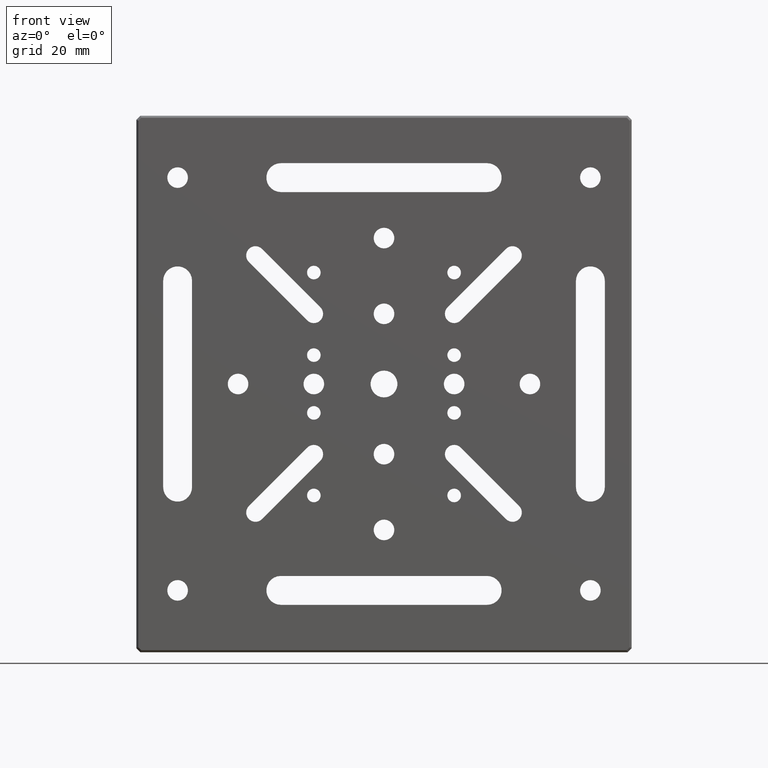
[diagram: clean part render]
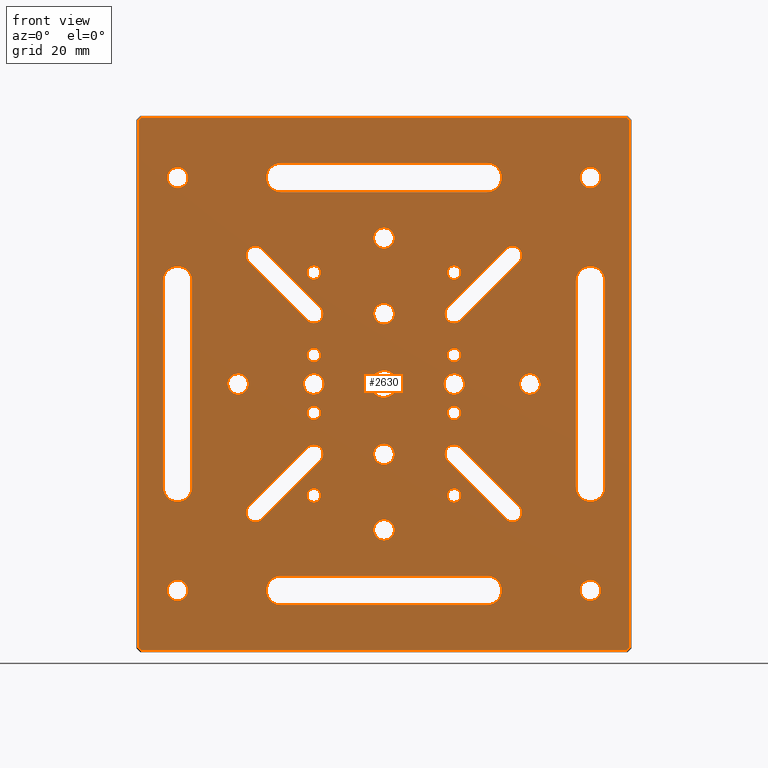
[diagram: same view with one face highlighted and labeled with its STEP entity id]
A machine part, front view. The second image highlights one B-rep face of the part: STEP entity #2630.
In plain terms, the highlighted planar face has unit normal (0, 1, 0).
Its self-contained STEP definition (entity closure, byte-faithful):
#2 = LINE ( 'NONE', #3746, #1610 ) ;
#10 = DIRECTION ( 'NONE',  ( 0.7071067811865470176, 0.000000000000000000, -0.7071067811865481278 ) ) ;
#14 = EDGE_CURVE ( 'NONE', #4095, #4095, #4105, .T. ) ;
#21 = EDGE_CURVE ( 'NONE', #1470, #1652, #2308, .T. ) ;
#27 = VERTEX_POINT ( 'NONE', #716 ) ;
#36 = VERTEX_POINT ( 'NONE', #2640 ) ;
#50 = AXIS2_PLACEMENT_3D ( 'NONE', #325, #1687, #2370 ) ;
#51 = ORIENTED_EDGE ( 'NONE', *, *, #2234, .T. ) ;
#55 = EDGE_CURVE ( 'NONE', #4284, #36, #303, .T. ) ;
#61 = CARTESIAN_POINT ( 'NONE',  ( -16.99999999999998934, -1.734723475976807094E-15, 28.64999999999999147 ) ) ;
#63 = AXIS2_PLACEMENT_3D ( 'NONE', #1187, #2539, #4215 ) ;
#89 = AXIS2_PLACEMENT_3D ( 'NONE', #1354, #2394, #3423 ) ;
#90 = LINE ( 'NONE', #4214, #794 ) ;
#99 = EDGE_LOOP ( 'NONE', ( #1305 ) ) ;
#102 = DIRECTION ( 'NONE',  ( -0.7071067811865481278, 0.000000000000000000, -0.7071067811865469066 ) ) ;
#106 = VERTEX_POINT ( 'NONE', #2481 ) ;
#110 = ORIENTED_EDGE ( 'NONE', *, *, #1559, .T. ) ;
#113 = LINE ( 'NONE', #3766, #2857 ) ;
#122 = EDGE_CURVE ( 'NONE', #2741, #2676, #3083, .T. ) ;
#126 = EDGE_CURVE ( 'NONE', #2676, #1183, #204, .T. ) ;
#130 = CARTESIAN_POINT ( 'NONE',  ( -18.59099025766972701, 0.000000000000000000, 15.40900974233026410 ) ) ;
#137 = VECTOR ( 'NONE', #1851, 1000.000000000000000 ) ;
#144 = CIRCLE ( 'NONE', #3772, 2.499999999999995115 ) ;
#149 = EDGE_LOOP ( 'NONE', ( #235 ) ) ;
#156 = CARTESIAN_POINT ( 'NONE',  ( 18.59099025766976254, 0.000000000000000000, 15.40900974233029075 ) ) ;
#158 = CARTESIAN_POINT ( 'NONE',  ( -46.50000000000001421, 0.000000000000000000, 24.99999999999999289 ) ) ;
#174 = DIRECTION ( 'NONE',  ( 0.000000000000000000, 1.000000000000000000, 0.000000000000000000 ) ) ;
#192 = VECTOR ( 'NONE', #2288, 1000.000000000000000 ) ;
#194 = DIRECTION ( 'NONE',  ( -0.000000000000000000, 1.000000000000000000, -0.000000000000000000 ) ) ;
#204 = CIRCLE ( 'NONE', #50, 2.250000000000000444 ) ;
#210 = EDGE_CURVE ( 'NONE', #3156, #3156, #757, .T. ) ;
#221 = CIRCLE ( 'NONE', #1353, 2.499999999999998668 ) ;
#225 = CARTESIAN_POINT ( 'NONE',  ( 25.00000000000000000, 0.000000000000000000, 49.99999999999999289 ) ) ;
#226 = ORIENTED_EDGE ( 'NONE', *, *, #4237, .T. ) ;
#227 = CARTESIAN_POINT ( 'NONE',  ( 17.00000000000000000, -1.734723475976807094E-15, 7.000000000000000888 ) ) ;
#235 = ORIENTED_EDGE ( 'NONE', *, *, #859, .T. ) ;
#236 = VECTOR ( 'NONE', #3478, 1000.000000000000000 ) ;
#266 = EDGE_CURVE ( 'NONE', #624, #1521, #1262, .T. ) ;
#301 = LINE ( 'NONE', #3417, #810 ) ;
#303 = LINE ( 'NONE', #1087, #2182 ) ;
#316 = EDGE_CURVE ( 'NONE', #4328, #2369, #2, .T. ) ;
#325 = CARTESIAN_POINT ( 'NONE',  ( 17.00000000000000000, 0.000000000000000000, -17.00000000000000355 ) ) ;
#350 = AXIS2_PLACEMENT_3D ( 'NONE', #540, #3236, #2608 ) ;
#357 = AXIS2_PLACEMENT_3D ( 'NONE', #225, #174, #2196 ) ;
#367 = VERTEX_POINT ( 'NONE', #648 ) ;
#383 = VERTEX_POINT ( 'NONE', #4080 ) ;
#386 = CARTESIAN_POINT ( 'NONE',  ( -50.00000000000000711, -1.734723475976807094E-15, 52.49999999999999289 ) ) ;
#396 = CARTESIAN_POINT ( 'NONE',  ( -17.00000000000000000, -1.734723475976807094E-15, 8.650000000000000355 ) ) ;
#417 = CARTESIAN_POINT ( 'NONE',  ( -16.99999999999999645, -1.734723475976807094E-15, -25.35000000000000853 ) ) ;
#441 = CARTESIAN_POINT ( 'NONE',  ( 17.00000000000000000, -1.734723475976807094E-15, 8.650000000000000355 ) ) ;
#445 = DIRECTION ( 'NONE',  ( 1.000000000000000000, -0.000000000000000000, 0.000000000000000000 ) ) ;
#454 = LINE ( 'NONE', #1063, #2877 ) ;
#475 = DIRECTION ( 'NONE',  ( -0.000000000000000000, 1.000000000000000000, -0.000000000000000000 ) ) ;
#485 = VERTEX_POINT ( 'NONE', #1579 ) ;
#492 = CARTESIAN_POINT ( 'NONE',  ( 53.49999999999999289, 0.000000000000000000, -1.484923295436146557E-14 ) ) ;
#493 = ORIENTED_EDGE ( 'NONE', *, *, #1727, .T. ) ;
#502 = FACE_BOUND ( 'NONE', #1201, .T. ) ;
#507 = EDGE_CURVE ( 'NONE', #1092, #1092, #3272, .T. ) ;
#508 = CARTESIAN_POINT ( 'NONE',  ( 17.00000000000000000, -8.673617379884035472E-15, 2.499999999999999556 ) ) ;
#514 = DIRECTION ( 'NONE',  ( 0.000000000000000000, 0.000000000000000000, 1.000000000000000000 ) ) ;
#526 = FACE_BOUND ( 'NONE', #3281, .T. ) ;
#538 = EDGE_CURVE ( 'NONE', #106, #106, #566, .T. ) ;
#539 = DIRECTION ( 'NONE',  ( -0.000000000000000000, 1.000000000000000000, -0.000000000000000000 ) ) ;
#540 = CARTESIAN_POINT ( 'NONE',  ( -25.00000000000001421, 0.000000000000000000, 49.99999999999999289 ) ) ;
#544 = AXIS2_PLACEMENT_3D ( 'NONE', #227, #2619, #3984 ) ;
#552 = FACE_BOUND ( 'NONE', #2592, .T. ) ;
#553 = CARTESIAN_POINT ( 'NONE',  ( 46.49999999999998579, 0.000000000000000000, -1.290634266126744163E-14 ) ) ;
#558 = LINE ( 'NONE', #130, #2164 ) ;
#566 = CIRCLE ( 'NONE', #1989, 1.649999999999998579 ) ;
#568 = VERTEX_POINT ( 'NONE', #1787 ) ;
#617 = LINE ( 'NONE', #3336, #4224 ) ;
#624 = VERTEX_POINT ( 'NONE', #848 ) ;
#631 = CARTESIAN_POINT ( 'NONE',  ( 29.55114536606125597, 0.000000000000000000, -32.73312588140066026 ) ) ;
#635 = AXIS2_PLACEMENT_3D ( 'NONE', #1147, #3793, #761 ) ;
#637 = EDGE_CURVE ( 'NONE', #3583, #3303, #2258, .T. ) ;
#639 = DIRECTION ( 'NONE',  ( 0.000000000000000000, 0.000000000000000000, 1.000000000000000000 ) ) ;
#640 = EDGE_CURVE ( 'NONE', #3013, #2142, #1237, .T. ) ;
#644 = DIRECTION ( 'NONE',  ( -0.000000000000000000, 1.000000000000000000, -0.000000000000000000 ) ) ;
#645 = VERTEX_POINT ( 'NONE', #1520 ) ;
#647 = DIRECTION ( 'NONE',  ( 0.000000000000000000, 1.000000000000000000, 0.000000000000000000 ) ) ;
#648 = CARTESIAN_POINT ( 'NONE',  ( -29.55114536606124531, 0.000000000000000000, 32.73312588140066737 ) ) ;
#673 = ORIENTED_EDGE ( 'NONE', *, *, #3226, .T. ) ;
#680 = DIRECTION ( 'NONE',  ( -0.7071067811865490160, -0.000000000000000000, 0.7071067811865460184 ) ) ;
#681 = VECTOR ( 'NONE', #102, 1000.000000000000114 ) ;
#684 = ORIENTED_EDGE ( 'NONE', *, *, #3414, .T. ) ;
#689 = EDGE_CURVE ( 'NONE', #2683, #3583, #3481, .T. ) ;
#696 = CARTESIAN_POINT ( 'NONE',  ( 0.000000000000000000, 0.000000000000000000, -53.50000000000001421 ) ) ;
#697 = DIRECTION ( 'NONE',  ( -0.000000000000000000, 1.000000000000000000, -0.000000000000000000 ) ) ;
#703 = EDGE_CURVE ( 'NONE', #2112, #2112, #1280, .T. ) ;
#716 = CARTESIAN_POINT ( 'NONE',  ( 17.00000000000000000, -1.734723475976807094E-15, -5.350000000000000533 ) ) ;
#721 = AXIS2_PLACEMENT_3D ( 'NONE', #4327, #2999, #1315 ) ;
#725 = CARTESIAN_POINT ( 'NONE',  ( 16.99999999999998934, -1.734723475976807094E-15, -25.35000000000000853 ) ) ;
#734 = VECTOR ( 'NONE', #2866, 1000.000000000000114 ) ;
#736 = VECTOR ( 'NONE', #4249, 1000.000000000000000 ) ;
#747 = AXIS2_PLACEMENT_3D ( 'NONE', #1910, #3622, #3268 ) ;
#757 = CIRCLE ( 'NONE', #3821, 2.499999999999998668 ) ;
#761 = DIRECTION ( 'NONE',  ( 0.000000000000000000, 0.000000000000000000, 1.000000000000000000 ) ) ;
#762 = DIRECTION ( 'NONE',  ( 0.000000000000000000, 1.000000000000000000, 0.000000000000000000 ) ) ;
#789 = CIRCLE ( 'NONE', #357, 3.500000000000003109 ) ;
#794 = VECTOR ( 'NONE', #2160, 999.9999999999998863 ) ;
#799 = DIRECTION ( 'NONE',  ( -1.000000000000000000, 0.000000000000000000, 0.000000000000000000 ) ) ;
#802 = DIRECTION ( 'NONE',  ( 0.000000000000000000, 0.000000000000000000, 1.000000000000000000 ) ) ;
#810 = VECTOR ( 'NONE', #10, 1000.000000000000000 ) ;
#812 = CARTESIAN_POINT ( 'NONE',  ( -16.99999999999999645, 0.000000000000000000, 16.99999999999999645 ) ) ;
#815 = DIRECTION ( 'NONE',  ( 0.000000000000000000, 0.000000000000000000, 1.000000000000000000 ) ) ;
#818 = VERTEX_POINT ( 'NONE', #2178 ) ;
#822 = AXIS2_PLACEMENT_3D ( 'NONE', #1569, #2191, #2928 ) ;
#825 = DIRECTION ( 'NONE',  ( 1.000000000000000000, -0.000000000000000000, 0.000000000000000000 ) ) ;
#838 = DIRECTION ( 'NONE',  ( 0.000000000000000000, 1.000000000000000000, 0.000000000000000000 ) ) ;
#840 = ORIENTED_EDGE ( 'NONE', *, *, #2417, .T. ) ;
#848 = CARTESIAN_POINT ( 'NONE',  ( -18.59099025766978031, 0.000000000000000000, -15.40900974233023391 ) ) ;
#850 = CIRCLE ( 'NONE', #635, 2.249999999999998668 ) ;
#855 = CIRCLE ( 'NONE', #1779, 2.249999999999998668 ) ;
#859 = EDGE_CURVE ( 'NONE', #1422, #1422, #3629, .T. ) ;
#861 = FACE_BOUND ( 'NONE', #2301, .T. ) ;
#866 = VERTEX_POINT ( 'NONE', #891 ) ;
#886 = FACE_BOUND ( 'NONE', #2547, .T. ) ;
#890 = AXIS2_PLACEMENT_3D ( 'NONE', #3588, #3183, #2509 ) ;
#891 = CARTESIAN_POINT ( 'NONE',  ( -50.00000000000002132, -1.734723475976807094E-15, -47.50000000000001421 ) ) ;
#892 = CIRCLE ( 'NONE', #3800, 2.500000000000002220 ) ;
#927 = ORIENTED_EDGE ( 'NONE', *, *, #126, .T. ) ;
#931 = FACE_BOUND ( 'NONE', #99, .T. ) ;
#960 = CARTESIAN_POINT ( 'NONE',  ( -17.00000000000000000, -8.673617379884035472E-15, 8.673617379884035472E-16 ) ) ;
#974 = CARTESIAN_POINT ( 'NONE',  ( -31.14213562373097588, 0.000000000000000000, 31.14213562373093325 ) ) ;
#975 = CIRCLE ( 'NONE', #4032, 2.499999999999998668 ) ;
#982 = ORIENTED_EDGE ( 'NONE', *, *, #1625, .T. ) ;
#986 = DIRECTION ( 'NONE',  ( 0.000000000000000000, 0.000000000000000000, 1.000000000000000000 ) ) ;
#1004 = AXIS2_PLACEMENT_3D ( 'NONE', #2359, #647, #3723 ) ;
#1020 = ORIENTED_EDGE ( 'NONE', *, *, #3851, .T. ) ;
#1028 = CARTESIAN_POINT ( 'NONE',  ( 15.40900974233024634, 0.000000000000000000, 18.59099025766970215 ) ) ;
#1046 = CARTESIAN_POINT ( 'NONE',  ( 0.000000000000000000, -1.734723475976807094E-15, -14.50000000000000533 ) ) ;
#1054 = LINE ( 'NONE', #1785, #2008 ) ;
#1055 = EDGE_CURVE ( 'NONE', #3337, #1337, #1582, .T. ) ;
#1061 = CARTESIAN_POINT ( 'NONE',  ( 59.50000000000000000, 0.000000000000000000, 63.79289321881345387 ) ) ;
#1063 = CARTESIAN_POINT ( 'NONE',  ( -15.40900974233026766, 0.000000000000000000, 18.59099025766973057 ) ) ;
#1080 = EDGE_LOOP ( 'NONE', ( #3874, #1359, #3271, #1658 ) ) ;
#1081 = EDGE_CURVE ( 'NONE', #2848, #3894, #558, .T. ) ;
#1082 = AXIS2_PLACEMENT_3D ( 'NONE', #4202, #838, #815 ) ;
#1083 = CARTESIAN_POINT ( 'NONE',  ( 6.938893903907228378E-15, -1.734723475976807094E-15, 16.99999999999999645 ) ) ;
#1087 = CARTESIAN_POINT ( 'NONE',  ( -53.50000000000002132, 0.000000000000000000, 0.000000000000000000 ) ) ;
#1088 = CIRCLE ( 'NONE', #721, 1.649999999999998579 ) ;
#1092 = VERTEX_POINT ( 'NONE', #725 ) ;
#1104 = CARTESIAN_POINT ( 'NONE',  ( -18.59099025766972701, 0.000000000000000000, 15.40900974233026410 ) ) ;
#1120 = CARTESIAN_POINT ( 'NONE',  ( 59.64644660940672338, 0.000000000000000000, -63.64644660940675891 ) ) ;
#1135 = DIRECTION ( 'NONE',  ( 0.000000000000000000, 0.000000000000000000, 1.000000000000000000 ) ) ;
#1144 = CIRCLE ( 'NONE', #1004, 3.500000000000003109 ) ;
#1147 = CARTESIAN_POINT ( 'NONE',  ( -31.14213562373095812, 0.000000000000000000, -31.14213562373094035 ) ) ;
#1155 = VERTEX_POINT ( 'NONE', #2505 ) ;
#1158 = EDGE_CURVE ( 'NONE', #2089, #2089, #4156, .T. ) ;
#1164 = ORIENTED_EDGE ( 'NONE', *, *, #210, .T. ) ;
#1179 = VERTEX_POINT ( 'NONE', #1915 ) ;
#1183 = VERTEX_POINT ( 'NONE', #3609 ) ;
#1187 = CARTESIAN_POINT ( 'NONE',  ( 0.000000000000000000, -8.673617379884035472E-15, 0.000000000000000000 ) ) ;
#1197 = FACE_BOUND ( 'NONE', #3598, .T. ) ;
#1198 = LINE ( 'NONE', #553, #3445 ) ;
#1201 = EDGE_LOOP ( 'NONE', ( #3616 ) ) ;
#1212 = VECTOR ( 'NONE', #1217, 1000.000000000000000 ) ;
#1217 = DIRECTION ( 'NONE',  ( 0.7071067811865456854, 0.000000000000000000, 0.7071067811865493491 ) ) ;
#1226 = PLANE ( 'NONE',  #747 ) ;
#1229 = ORIENTED_EDGE ( 'NONE', *, *, #3284, .T. ) ;
#1235 = CIRCLE ( 'NONE', #4213, 1.649999999999998579 ) ;
#1236 = CARTESIAN_POINT ( 'NONE',  ( 2.081668171172168513E-14, -1.734723475976807094E-15, 35.35533905932729226 ) ) ;
#1237 = LINE ( 'NONE', #492, #137 ) ;
#1244 = CIRCLE ( 'NONE', #2157, 2.500000000000002220 ) ;
#1256 = VERTEX_POINT ( 'NONE', #2312 ) ;
#1262 = CIRCLE ( 'NONE', #822, 2.250000000000029754 ) ;
#1272 = EDGE_CURVE ( 'NONE', #2463, #2463, #1088, .T. ) ;
#1273 = DIRECTION ( 'NONE',  ( 0.000000000000000000, 0.000000000000000000, 1.000000000000000000 ) ) ;
#1276 = EDGE_CURVE ( 'NONE', #3450, #3450, #1235, .T. ) ;
#1280 = CIRCLE ( 'NONE', #63, 3.250000000000011990 ) ;
#1282 = EDGE_LOOP ( 'NONE', ( #493 ) ) ;
#1294 = CIRCLE ( 'NONE', #1082, 3.500000000000003109 ) ;
#1300 = EDGE_CURVE ( 'NONE', #1459, #2848, #3506, .T. ) ;
#1305 = ORIENTED_EDGE ( 'NONE', *, *, #703, .T. ) ;
#1311 = EDGE_CURVE ( 'NONE', #1507, #624, #1908, .T. ) ;
#1315 = DIRECTION ( 'NONE',  ( 0.000000000000000000, 0.000000000000000000, 1.000000000000000000 ) ) ;
#1337 = VERTEX_POINT ( 'NONE', #4225 ) ;
#1353 = AXIS2_PLACEMENT_3D ( 'NONE', #2829, #2060, #2806 ) ;
#1354 = CARTESIAN_POINT ( 'NONE',  ( -50.00000000000001421, 0.000000000000000000, -25.00000000000000711 ) ) ;
#1359 = ORIENTED_EDGE ( 'NONE', *, *, #3662, .T. ) ;
#1370 = VERTEX_POINT ( 'NONE', #2215 ) ;
#1385 = CARTESIAN_POINT ( 'NONE',  ( 25.00000000000000000, 0.000000000000000000, 53.50000000000000000 ) ) ;
#1422 = VERTEX_POINT ( 'NONE', #61 ) ;
#1434 = LINE ( 'NONE', #2947, #1212 ) ;
#1444 = DIRECTION ( 'NONE',  ( -0.000000000000000000, 1.000000000000000000, -0.000000000000000000 ) ) ;
#1453 = VERTEX_POINT ( 'NONE', #3058 ) ;
#1459 = VERTEX_POINT ( 'NONE', #1703 ) ;
#1461 = DIRECTION ( 'NONE',  ( 0.000000000000000000, 0.000000000000000000, 1.000000000000000000 ) ) ;
#1470 = VERTEX_POINT ( 'NONE', #1615 ) ;
#1480 = AXIS2_PLACEMENT_3D ( 'NONE', #2959, #1958, #1273 ) ;
#1505 = FACE_BOUND ( 'NONE', #3673, .T. ) ;
#1507 = VERTEX_POINT ( 'NONE', #3039 ) ;
#1520 = CARTESIAN_POINT ( 'NONE',  ( 25.00000000000000000, 0.000000000000000000, 46.49999999999999289 ) ) ;
#1521 = VERTEX_POINT ( 'NONE', #3372 ) ;
#1535 = EDGE_LOOP ( 'NONE', ( #3353 ) ) ;
#1536 = CARTESIAN_POINT ( 'NONE',  ( 2.081668171172168513E-14, -1.734723475976807094E-15, 37.85533905932729226 ) ) ;
#1541 = CIRCLE ( 'NONE', #4171, 2.249999999999998668 ) ;
#1550 = CARTESIAN_POINT ( 'NONE',  ( 0.000000000000000000, -1.734723475976807094E-15, -17.00000000000000355 ) ) ;
#1553 = DIRECTION ( 'NONE',  ( 0.000000000000000000, 1.000000000000000000, 0.000000000000000000 ) ) ;
#1554 = FACE_BOUND ( 'NONE', #2439, .T. ) ;
#1559 = EDGE_CURVE ( 'NONE', #3894, #367, #1541, .T. ) ;
#1569 = CARTESIAN_POINT ( 'NONE',  ( -17.00000000000000000, 0.000000000000000000, -17.00000000000000355 ) ) ;
#1574 = FACE_BOUND ( 'NONE', #4204, .T. ) ;
#1578 = VERTEX_POINT ( 'NONE', #2699 ) ;
#1579 = CARTESIAN_POINT ( 'NONE',  ( -17.00000000000000000, -8.673617379884035472E-15, 2.499999999999999556 ) ) ;
#1582 = LINE ( 'NONE', #156, #734 ) ;
#1591 = VERTEX_POINT ( 'NONE', #3817 ) ;
#1594 = AXIS2_PLACEMENT_3D ( 'NONE', #1850, #3258, #3950 ) ;
#1597 = DIRECTION ( 'NONE',  ( -0.000000000000000000, 1.000000000000000000, -0.000000000000000000 ) ) ;
#1610 = VECTOR ( 'NONE', #1677, 1000.000000000000000 ) ;
#1615 = CARTESIAN_POINT ( 'NONE',  ( 59.49999999999998579, 0.000000000000000000, -63.79289321881349650 ) ) ;
#1625 = EDGE_CURVE ( 'NONE', #3538, #3538, #2256, .T. ) ;
#1643 = DIRECTION ( 'NONE',  ( -0.7071067811865573427, 0.000000000000000000, -0.7071067811865378028 ) ) ;
#1652 = VERTEX_POINT ( 'NONE', #1061 ) ;
#1658 = ORIENTED_EDGE ( 'NONE', *, *, #2352, .T. ) ;
#1677 = DIRECTION ( 'NONE',  ( 0.000000000000000000, 0.000000000000000000, -1.000000000000000000 ) ) ;
#1687 = DIRECTION ( 'NONE',  ( 0.000000000000000000, 1.000000000000000000, 0.000000000000000000 ) ) ;
#1703 = CARTESIAN_POINT ( 'NONE',  ( -15.40900974233026766, 0.000000000000000000, 18.59099025766973057 ) ) ;
#1714 = DIRECTION ( 'NONE',  ( 0.000000000000000000, 1.000000000000000000, 0.000000000000000000 ) ) ;
#1727 = EDGE_CURVE ( 'NONE', #485, #485, #975, .T. ) ;
#1729 = EDGE_LOOP ( 'NONE', ( #2791, #226, #3088, #2955 ) ) ;
#1733 = EDGE_LOOP ( 'NONE', ( #4414, #2361, #2612, #4090 ) ) ;
#1739 = ORIENTED_EDGE ( 'NONE', *, *, #3231, .T. ) ;
#1741 = DIRECTION ( 'NONE',  ( -0.000000000000000000, 1.000000000000000000, -0.000000000000000000 ) ) ;
#1754 = CARTESIAN_POINT ( 'NONE',  ( 0.000000000000000000, -8.673617379884035472E-15, 3.250000000000011990 ) ) ;
#1777 = CARTESIAN_POINT ( 'NONE',  ( 32.73312588140066026, 0.000000000000000000, -29.55114536606122400 ) ) ;
#1779 = AXIS2_PLACEMENT_3D ( 'NONE', #2668, #4034, #986 ) ;
#1785 = CARTESIAN_POINT ( 'NONE',  ( -59.50000000000000711, 0.000000000000000000, 6.351756727422770410E-15 ) ) ;
#1787 = CARTESIAN_POINT ( 'NONE',  ( 58.79289321881342545, 0.000000000000000000, 64.50000000000000000 ) ) ;
#1794 = LINE ( 'NONE', #3151, #681 ) ;
#1795 = ORIENTED_EDGE ( 'NONE', *, *, #3863, .T. ) ;
#1804 = DIRECTION ( 'NONE',  ( -1.067522139062650425E-16, 0.000000000000000000, -1.000000000000000000 ) ) ;
#1812 = DIRECTION ( 'NONE',  ( 0.7071067811865484609, -0.000000000000000000, -0.7071067811865465735 ) ) ;
#1813 = EDGE_LOOP ( 'NONE', ( #1918 ) ) ;
#1831 = CARTESIAN_POINT ( 'NONE',  ( -35.35533905932731358, -1.734723475976807094E-15, -4.774369416859170441E-15 ) ) ;
#1837 = DIRECTION ( 'NONE',  ( 0.000000000000000000, 0.000000000000000000, 1.000000000000000000 ) ) ;
#1840 = ORIENTED_EDGE ( 'NONE', *, *, #3920, .T. ) ;
#1850 = CARTESIAN_POINT ( 'NONE',  ( -50.00000000000002132, -1.734723475976807094E-15, -50.00000000000000711 ) ) ;
#1851 = DIRECTION ( 'NONE',  ( -2.775557561562891351E-16, 0.000000000000000000, -1.000000000000000000 ) ) ;
#1860 = EDGE_CURVE ( 'NONE', #2142, #3933, #3848, .T. ) ;
#1862 = FACE_BOUND ( 'NONE', #149, .T. ) ;
#1883 = AXIS2_PLACEMENT_3D ( 'NONE', #3581, #2245, #3248 ) ;
#1886 = FACE_BOUND ( 'NONE', #2808, .T. ) ;
#1895 = VECTOR ( 'NONE', #2294, 1000.000000000000000 ) ;
#1908 = LINE ( 'NONE', #3267, #4293 ) ;
#1910 = CARTESIAN_POINT ( 'NONE',  ( 0.000000000000000000, 0.000000000000000000, 0.000000000000000000 ) ) ;
#1911 = CARTESIAN_POINT ( 'NONE',  ( 46.49999999999997868, 0.000000000000000000, -25.00000000000001066 ) ) ;
#1915 = CARTESIAN_POINT ( 'NONE',  ( 49.99999999999997868, -1.734723475976807094E-15, -47.50000000000001421 ) ) ;
#1918 = ORIENTED_EDGE ( 'NONE', *, *, #538, .T. ) ;
#1933 = DIRECTION ( 'NONE',  ( 0.000000000000000000, 0.000000000000000000, 1.000000000000000000 ) ) ;
#1936 = VERTEX_POINT ( 'NONE', #386 ) ;
#1953 = DIRECTION ( 'NONE',  ( 2.775557561562891351E-16, -0.000000000000000000, 1.000000000000000000 ) ) ;
#1958 = DIRECTION ( 'NONE',  ( 0.000000000000000000, 1.000000000000000000, 0.000000000000000000 ) ) ;
#1974 = DIRECTION ( 'NONE',  ( 0.000000000000000000, 0.000000000000000000, 1.000000000000000000 ) ) ;
#1978 = CARTESIAN_POINT ( 'NONE',  ( 31.14213562373092614, 0.000000000000000000, 31.14213562373099009 ) ) ;
#1989 = AXIS2_PLACEMENT_3D ( 'NONE', #3119, #1741, #3788 ) ;
#2008 = VECTOR ( 'NONE', #1804, 1000.000000000000000 ) ;
#2014 = DIRECTION ( 'NONE',  ( -1.000000000000000000, 0.000000000000000000, 0.000000000000000000 ) ) ;
#2043 = EDGE_CURVE ( 'NONE', #3203, #3203, #4183, .T. ) ;
#2060 = DIRECTION ( 'NONE',  ( -0.000000000000000000, 1.000000000000000000, -0.000000000000000000 ) ) ;
#2066 = VERTEX_POINT ( 'NONE', #1777 ) ;
#2075 = ORIENTED_EDGE ( 'NONE', *, *, #1300, .T. ) ;
#2089 = VERTEX_POINT ( 'NONE', #417 ) ;
#2112 = VERTEX_POINT ( 'NONE', #1754 ) ;
#2124 = CARTESIAN_POINT ( 'NONE',  ( -59.50000000000000000, 0.000000000000000000, 63.79289321881351071 ) ) ;
#2132 = VERTEX_POINT ( 'NONE', #2865 ) ;
#2142 = VERTEX_POINT ( 'NONE', #3806 ) ;
#2150 = CARTESIAN_POINT ( 'NONE',  ( -50.00000000000001421, 0.000000000000000000, 24.99999999999999289 ) ) ;
#2157 = AXIS2_PLACEMENT_3D ( 'NONE', #1236, #539, #2585 ) ;
#2158 = LINE ( 'NONE', #3500, #3954 ) ;
#2160 = DIRECTION ( 'NONE',  ( 0.7071067811865376918, 0.000000000000000000, -0.7071067811865574537 ) ) ;
#2164 = VECTOR ( 'NONE', #3206, 999.9999999999998863 ) ;
#2178 = CARTESIAN_POINT ( 'NONE',  ( -1.600875729039823663E-14, -1.734723475976807094E-15, -32.85533905932745569 ) ) ;
#2182 = VECTOR ( 'NONE', #3108, 1000.000000000000000 ) ;
#2191 = DIRECTION ( 'NONE',  ( 0.000000000000000000, 1.000000000000000000, 0.000000000000000000 ) ) ;
#2195 = FACE_BOUND ( 'NONE', #1729, .T. ) ;
#2196 = DIRECTION ( 'NONE',  ( 0.000000000000000000, 0.000000000000000000, 1.000000000000000000 ) ) ;
#2210 = EDGE_LOOP ( 'NONE', ( #3037 ) ) ;
#2211 = DIRECTION ( 'NONE',  ( 0.000000000000000000, 0.000000000000000000, 1.000000000000000000 ) ) ;
#2213 = DIRECTION ( 'NONE',  ( -0.000000000000000000, 1.000000000000000000, -0.000000000000000000 ) ) ;
#2215 = CARTESIAN_POINT ( 'NONE',  ( -25.00000000000004263, 0.000000000000000000, -46.50000000000000711 ) ) ;
#2216 = FACE_BOUND ( 'NONE', #2210, .T. ) ;
#2233 = EDGE_LOOP ( 'NONE', ( #3249 ) ) ;
#2234 = EDGE_CURVE ( 'NONE', #2066, #2741, #2468, .T. ) ;
#2235 = AXIS2_PLACEMENT_3D ( 'NONE', #2150, #3823, #1461 ) ;
#2241 = CIRCLE ( 'NONE', #3304, 2.499999999999995115 ) ;
#2243 = AXIS2_PLACEMENT_3D ( 'NONE', #2537, #3900, #514 ) ;
#2244 = FACE_BOUND ( 'NONE', #3656, .T. ) ;
#2245 = DIRECTION ( 'NONE',  ( -0.000000000000000000, 1.000000000000000000, -0.000000000000000000 ) ) ;
#2248 = VERTEX_POINT ( 'NONE', #1536 ) ;
#2256 = CIRCLE ( 'NONE', #3459, 2.499999999999998668 ) ;
#2258 = LINE ( 'NONE', #3614, #3052 ) ;
#2263 = ORIENTED_EDGE ( 'NONE', *, *, #2460, .T. ) ;
#2284 = FACE_BOUND ( 'NONE', #4365, .T. ) ;
#2288 = DIRECTION ( 'NONE',  ( 1.067522139062650425E-16, 0.000000000000000000, 1.000000000000000000 ) ) ;
#2294 = DIRECTION ( 'NONE',  ( 1.000000000000000000, 0.000000000000000000, 1.156482317317871478E-16 ) ) ;
#2301 = EDGE_LOOP ( 'NONE', ( #3389 ) ) ;
#2308 = LINE ( 'NONE', #2913, #192 ) ;
#2312 = CARTESIAN_POINT ( 'NONE',  ( 25.00000000000000000, 0.000000000000000000, -53.50000000000001421 ) ) ;
#2322 = EDGE_CURVE ( 'NONE', #2369, #4284, #3299, .T. ) ;
#2323 = DIRECTION ( 'NONE',  ( 0.000000000000000000, 1.000000000000000000, 0.000000000000000000 ) ) ;
#2337 = ORIENTED_EDGE ( 'NONE', *, *, #1158, .T. ) ;
#2352 = EDGE_CURVE ( 'NONE', #3893, #3337, #4298, .T. ) ;
#2356 = LINE ( 'NONE', #4349, #1895 ) ;
#2359 = CARTESIAN_POINT ( 'NONE',  ( 25.00000000000000000, 0.000000000000000000, -50.00000000000000711 ) ) ;
#2361 = ORIENTED_EDGE ( 'NONE', *, *, #266, .T. ) ;
#2369 = VERTEX_POINT ( 'NONE', #2686 ) ;
#2370 = DIRECTION ( 'NONE',  ( 0.000000000000000000, 0.000000000000000000, 1.000000000000000000 ) ) ;
#2373 = DIRECTION ( 'NONE',  ( 0.000000000000000000, 1.000000000000000000, 0.000000000000000000 ) ) ;
#2389 = LINE ( 'NONE', #696, #3381 ) ;
#2394 = DIRECTION ( 'NONE',  ( 0.000000000000000000, 1.000000000000000000, 0.000000000000000000 ) ) ;
#2401 = EDGE_LOOP ( 'NONE', ( #2263 ) ) ;
#2406 = EDGE_LOOP ( 'NONE', ( #2890 ) ) ;
#2412 = DIRECTION ( 'NONE',  ( 0.000000000000000000, 0.000000000000000000, 1.000000000000000000 ) ) ;
#2417 = EDGE_CURVE ( 'NONE', #1578, #2895, #617, .T. ) ;
#2439 = EDGE_LOOP ( 'NONE', ( #1164 ) ) ;
#2454 = EDGE_CURVE ( 'NONE', #36, #4328, #3587, .T. ) ;
#2460 = EDGE_CURVE ( 'NONE', #1179, #1179, #3369, .T. ) ;
#2463 = VERTEX_POINT ( 'NONE', #3089 ) ;
#2468 = CIRCLE ( 'NONE', #1480, 2.249999999999970690 ) ;
#2478 = DIRECTION ( 'NONE',  ( 0.000000000000000000, 0.000000000000000000, 1.000000000000000000 ) ) ;
#2481 = CARTESIAN_POINT ( 'NONE',  ( -17.00000000000000000, -1.734723475976807094E-15, -5.350000000000000533 ) ) ;
#2486 = ORIENTED_EDGE ( 'NONE', *, *, #640, .T. ) ;
#2505 = CARTESIAN_POINT ( 'NONE',  ( 35.35533905932744858, -1.734723475976807094E-15, 2.500000000000009326 ) ) ;
#2506 = AXIS2_PLACEMENT_3D ( 'NONE', #1978, #2373, #3756 ) ;
#2509 = DIRECTION ( 'NONE',  ( 0.000000000000000000, 0.000000000000000000, 1.000000000000000000 ) ) ;
#2512 = CIRCLE ( 'NONE', #1883, 2.499999999999995115 ) ;
#2537 = CARTESIAN_POINT ( 'NONE',  ( 17.00000000000000000, -1.734723475976807094E-15, -6.999999999999999112 ) ) ;
#2539 = DIRECTION ( 'NONE',  ( -0.000000000000000000, 1.000000000000000000, -0.000000000000000000 ) ) ;
#2547 = EDGE_LOOP ( 'NONE', ( #4217, #927, #2634, #51 ) ) ;
#2552 = ORIENTED_EDGE ( 'NONE', *, *, #1860, .T. ) ;
#2573 = EDGE_CURVE ( 'NONE', #1521, #2762, #1794, .T. ) ;
#2580 = CARTESIAN_POINT ( 'NONE',  ( -35.35533905932731358, -1.734723475976807094E-15, 2.499999999999990674 ) ) ;
#2585 = DIRECTION ( 'NONE',  ( 0.000000000000000000, 0.000000000000000000, 1.000000000000000000 ) ) ;
#2592 = EDGE_LOOP ( 'NONE', ( #2337 ) ) ;
#2595 = DIRECTION ( 'NONE',  ( 0.7071067811865461294, -0.000000000000000000, 0.7071067811865489050 ) ) ;
#2597 = FACE_BOUND ( 'NONE', #3489, .T. ) ;
#2608 = DIRECTION ( 'NONE',  ( 0.000000000000000000, 0.000000000000000000, 1.000000000000000000 ) ) ;
#2612 = ORIENTED_EDGE ( 'NONE', *, *, #2573, .T. ) ;
#2619 = DIRECTION ( 'NONE',  ( -0.000000000000000000, 1.000000000000000000, -0.000000000000000000 ) ) ;
#2630 = ADVANCED_FACE ( 'NONE', ( #3580, #3914, #931, #1574, #2597, #526, #2195, #1886, #2932, #886, #3962, #861, #4248, #3556, #1197, #2244, #1505, #3247, #3602, #1554, #4297, #4226, #502, #2910, #3891, #552, #2284, #2216, #1862, #3981 ), #1226, .F. ) ;
#2634 = ORIENTED_EDGE ( 'NONE', *, *, #4048, .T. ) ;
#2640 = CARTESIAN_POINT ( 'NONE',  ( -53.50000000000002132, 0.000000000000000000, 24.99999999999999289 ) ) ;
#2668 = CARTESIAN_POINT ( 'NONE',  ( 17.00000000000000355, 0.000000000000000000, 16.99999999999999645 ) ) ;
#2676 = VERTEX_POINT ( 'NONE', #4401 ) ;
#2681 = CARTESIAN_POINT ( 'NONE',  ( -29.55114536606122755, 0.000000000000000000, -32.73312588140066737 ) ) ;
#2683 = VERTEX_POINT ( 'NONE', #4088 ) ;
#2686 = CARTESIAN_POINT ( 'NONE',  ( -46.50000000000001421, 0.000000000000000000, -25.00000000000000711 ) ) ;
#2689 = EDGE_CURVE ( 'NONE', #1256, #383, #2389, .T. ) ;
#2690 = CARTESIAN_POINT ( 'NONE',  ( -25.00000000000001421, 0.000000000000000000, 53.50000000000000000 ) ) ;
#2699 = CARTESIAN_POINT ( 'NONE',  ( -58.79289321881348940, 0.000000000000000000, 64.50000000000000000 ) ) ;
#2718 = ORIENTED_EDGE ( 'NONE', *, *, #3552, .T. ) ;
#2741 = VERTEX_POINT ( 'NONE', #631 ) ;
#2762 = VERTEX_POINT ( 'NONE', #2681 ) ;
#2779 = CARTESIAN_POINT ( 'NONE',  ( 32.73312588140068158, 0.000000000000000000, 29.55114536606128439 ) ) ;
#2791 = ORIENTED_EDGE ( 'NONE', *, *, #2689, .T. ) ;
#2794 = CARTESIAN_POINT ( 'NONE',  ( 49.99999999999999289, -1.734723475976807094E-15, 49.99999999999999289 ) ) ;
#2804 = ORIENTED_EDGE ( 'NONE', *, *, #689, .T. ) ;
#2805 = DIRECTION ( 'NONE',  ( -0.000000000000000000, 1.000000000000000000, -0.000000000000000000 ) ) ;
#2806 = DIRECTION ( 'NONE',  ( 0.000000000000000000, 0.000000000000000000, 1.000000000000000000 ) ) ;
#2808 = EDGE_LOOP ( 'NONE', ( #4061, #2075, #4335, #110 ) ) ;
#2814 = EDGE_LOOP ( 'NONE', ( #1795 ) ) ;
#2815 = EDGE_CURVE ( 'NONE', #3560, #3560, #221, .T. ) ;
#2822 = LINE ( 'NONE', #3163, #4161 ) ;
#2829 = CARTESIAN_POINT ( 'NONE',  ( 17.00000000000000000, -8.673617379884035472E-15, 8.673617379884035472E-16 ) ) ;
#2834 = DIRECTION ( 'NONE',  ( -0.000000000000000000, 1.000000000000000000, -0.000000000000000000 ) ) ;
#2838 = ORIENTED_EDGE ( 'NONE', *, *, #3009, .T. ) ;
#2848 = VERTEX_POINT ( 'NONE', #1104 ) ;
#2857 = VECTOR ( 'NONE', #4123, 1000.000000000000000 ) ;
#2863 = VERTEX_POINT ( 'NONE', #2580 ) ;
#2865 = CARTESIAN_POINT ( 'NONE',  ( 25.00000000000000000, 0.000000000000000000, -46.50000000000000711 ) ) ;
#2866 = DIRECTION ( 'NONE',  ( -0.7071067811865457964, -0.000000000000000000, -0.7071067811865492381 ) ) ;
#2869 = EDGE_CURVE ( 'NONE', #2762, #1507, #850, .T. ) ;
#2877 = VECTOR ( 'NONE', #1812, 1000.000000000000000 ) ;
#2890 = ORIENTED_EDGE ( 'NONE', *, *, #14, .T. ) ;
#2895 = VERTEX_POINT ( 'NONE', #2124 ) ;
#2910 = FACE_BOUND ( 'NONE', #2406, .T. ) ;
#2911 = CARTESIAN_POINT ( 'NONE',  ( -32.73312588140070289, 0.000000000000000000, 29.55114536606119557 ) ) ;
#2913 = CARTESIAN_POINT ( 'NONE',  ( 59.49999999999999289, 0.000000000000000000, -6.351756727422768832E-15 ) ) ;
#2928 = DIRECTION ( 'NONE',  ( 0.000000000000000000, 0.000000000000000000, 1.000000000000000000 ) ) ;
#2930 = EDGE_CURVE ( 'NONE', #3741, #3893, #1434, .T. ) ;
#2932 = FACE_BOUND ( 'NONE', #1080, .T. ) ;
#2947 = CARTESIAN_POINT ( 'NONE',  ( 15.40900974233024634, 0.000000000000000000, 18.59099025766970215 ) ) ;
#2954 = CARTESIAN_POINT ( 'NONE',  ( 29.55114536606116715, 0.000000000000000000, 32.73312588140069579 ) ) ;
#2955 = ORIENTED_EDGE ( 'NONE', *, *, #3130, .T. ) ;
#2959 = CARTESIAN_POINT ( 'NONE',  ( 31.14213562373094391, 0.000000000000000000, -31.14213562373096877 ) ) ;
#2967 = VECTOR ( 'NONE', #680, 1000.000000000000114 ) ;
#2999 = DIRECTION ( 'NONE',  ( -0.000000000000000000, 1.000000000000000000, -0.000000000000000000 ) ) ;
#3009 = EDGE_CURVE ( 'NONE', #2863, #2863, #144, .T. ) ;
#3013 = VERTEX_POINT ( 'NONE', #3549 ) ;
#3030 = ORIENTED_EDGE ( 'NONE', *, *, #3822, .T. ) ;
#3037 = ORIENTED_EDGE ( 'NONE', *, *, #1272, .T. ) ;
#3039 = CARTESIAN_POINT ( 'NONE',  ( -32.73312588140069579, 0.000000000000000000, -29.55114536606120978 ) ) ;
#3052 = VECTOR ( 'NONE', #825, 1000.000000000000000 ) ;
#3058 = CARTESIAN_POINT ( 'NONE',  ( 58.79289321881347519, 0.000000000000000000, -64.49999999999998579 ) ) ;
#3083 = LINE ( 'NONE', #3419, #2967 ) ;
#3088 = ORIENTED_EDGE ( 'NONE', *, *, #4281, .T. ) ;
#3089 = CARTESIAN_POINT ( 'NONE',  ( 16.99999999999999645, -1.734723475976807094E-15, 28.64999999999999147 ) ) ;
#3107 = ORIENTED_EDGE ( 'NONE', *, *, #4073, .T. ) ;
#3108 = DIRECTION ( 'NONE',  ( 0.000000000000000000, 0.000000000000000000, 1.000000000000000000 ) ) ;
#3119 = CARTESIAN_POINT ( 'NONE',  ( -17.00000000000000000, -1.734723475976807094E-15, -6.999999999999999112 ) ) ;
#3128 = CARTESIAN_POINT ( 'NONE',  ( -25.00000000000004263, 0.000000000000000000, -50.00000000000000711 ) ) ;
#3130 = EDGE_CURVE ( 'NONE', #2132, #1256, #1144, .T. ) ;
#3141 = VERTEX_POINT ( 'NONE', #3977 ) ;
#3151 = CARTESIAN_POINT ( 'NONE',  ( -15.40900974233027121, 0.000000000000000000, -18.59099025766973767 ) ) ;
#3156 = VERTEX_POINT ( 'NONE', #1046 ) ;
#3160 = CIRCLE ( 'NONE', #3239, 3.500000000000003109 ) ;
#3163 = CARTESIAN_POINT ( 'NONE',  ( 0.000000000000000000, 0.000000000000000000, 64.50000000000000000 ) ) ;
#3171 = CARTESIAN_POINT ( 'NONE',  ( 46.49999999999999289, 0.000000000000000000, 24.99999999999999645 ) ) ;
#3183 = DIRECTION ( 'NONE',  ( -0.000000000000000000, 1.000000000000000000, -0.000000000000000000 ) ) ;
#3185 = CARTESIAN_POINT ( 'NONE',  ( -53.50000000000002132, 0.000000000000000000, -25.00000000000000711 ) ) ;
#3203 = VERTEX_POINT ( 'NONE', #3896 ) ;
#3206 = DIRECTION ( 'NONE',  ( -0.7071067811865486830, 0.000000000000000000, 0.7071067811865464625 ) ) ;
#3226 = EDGE_CURVE ( 'NONE', #1453, #1470, #3744, .T. ) ;
#3231 = EDGE_CURVE ( 'NONE', #1652, #568, #113, .T. ) ;
#3236 = DIRECTION ( 'NONE',  ( 0.000000000000000000, 1.000000000000000000, 0.000000000000000000 ) ) ;
#3239 = AXIS2_PLACEMENT_3D ( 'NONE', #3128, #762, #2412 ) ;
#3247 = FACE_BOUND ( 'NONE', #3256, .T. ) ;
#3248 = DIRECTION ( 'NONE',  ( 0.000000000000000000, 0.000000000000000000, 1.000000000000000000 ) ) ;
#3249 = ORIENTED_EDGE ( 'NONE', *, *, #4325, .T. ) ;
#3256 = EDGE_LOOP ( 'NONE', ( #3107 ) ) ;
#3258 = DIRECTION ( 'NONE',  ( -0.000000000000000000, 1.000000000000000000, -0.000000000000000000 ) ) ;
#3261 = ORIENTED_EDGE ( 'NONE', *, *, #316, .T. ) ;
#3267 = CARTESIAN_POINT ( 'NONE',  ( -18.59099025766978031, 0.000000000000000000, -15.40900974233023391 ) ) ;
#3268 = DIRECTION ( 'NONE',  ( 0.000000000000000000, -0.000000000000000000, 1.000000000000000000 ) ) ;
#3271 = ORIENTED_EDGE ( 'NONE', *, *, #2930, .T. ) ;
#3272 = CIRCLE ( 'NONE', #3340, 1.649999999999998579 ) ;
#3281 = EDGE_LOOP ( 'NONE', ( #2486, #2552, #1840, #3838 ) ) ;
#3282 = AXIS2_PLACEMENT_3D ( 'NONE', #4033, #1714, #4074 ) ;
#3283 = DIRECTION ( 'NONE',  ( 0.000000000000000000, 0.000000000000000000, 1.000000000000000000 ) ) ;
#3284 = EDGE_CURVE ( 'NONE', #2895, #1591, #1054, .T. ) ;
#3291 = CARTESIAN_POINT ( 'NONE',  ( 0.000000000000000000, 0.000000000000000000, 46.49999999999999289 ) ) ;
#3299 = CIRCLE ( 'NONE', #89, 3.500000000000003109 ) ;
#3303 = VERTEX_POINT ( 'NONE', #1385 ) ;
#3304 = AXIS2_PLACEMENT_3D ( 'NONE', #4089, #697, #1974 ) ;
#3336 = CARTESIAN_POINT ( 'NONE',  ( -59.64644660940673759, 0.000000000000000000, 63.64644660940677312 ) ) ;
#3337 = VERTEX_POINT ( 'NONE', #2779 ) ;
#3340 = AXIS2_PLACEMENT_3D ( 'NONE', #4145, #3479, #802 ) ;
#3344 = DIRECTION ( 'NONE',  ( 0.000000000000000000, 0.000000000000000000, 1.000000000000000000 ) ) ;
#3349 = EDGE_CURVE ( 'NONE', #1591, #3141, #90, .T. ) ;
#3353 = ORIENTED_EDGE ( 'NONE', *, *, #2815, .T. ) ;
#3368 = ORIENTED_EDGE ( 'NONE', *, *, #2322, .T. ) ;
#3369 = CIRCLE ( 'NONE', #4078, 2.499999999999995115 ) ;
#3372 = CARTESIAN_POINT ( 'NONE',  ( -15.40900974233027121, 0.000000000000000000, -18.59099025766973767 ) ) ;
#3381 = VECTOR ( 'NONE', #2014, 1000.000000000000000 ) ;
#3389 = ORIENTED_EDGE ( 'NONE', *, *, #3447, .T. ) ;
#3414 = EDGE_CURVE ( 'NONE', #2248, #2248, #1244, .T. ) ;
#3417 = CARTESIAN_POINT ( 'NONE',  ( 18.59099025766973412, 0.000000000000000000, -15.40900974233027299 ) ) ;
#3419 = CARTESIAN_POINT ( 'NONE',  ( 15.40900974233027299, 0.000000000000000000, -18.59099025766974123 ) ) ;
#3423 = DIRECTION ( 'NONE',  ( 0.000000000000000000, 0.000000000000000000, 1.000000000000000000 ) ) ;
#3445 = VECTOR ( 'NONE', #1953, 1000.000000000000000 ) ;
#3446 = CARTESIAN_POINT ( 'NONE',  ( 49.99999999999997868, -1.734723475976807094E-15, -50.00000000000000711 ) ) ;
#3447 = EDGE_CURVE ( 'NONE', #866, #866, #3726, .T. ) ;
#3450 = VERTEX_POINT ( 'NONE', #396 ) ;
#3459 = AXIS2_PLACEMENT_3D ( 'NONE', #1083, #2805, #3749 ) ;
#3460 = ORIENTED_EDGE ( 'NONE', *, *, #637, .T. ) ;
#3478 = DIRECTION ( 'NONE',  ( 0.7071067811865573427, 0.000000000000000000, 0.7071067811865378028 ) ) ;
#3479 = DIRECTION ( 'NONE',  ( -0.000000000000000000, 1.000000000000000000, -0.000000000000000000 ) ) ;
#3481 = CIRCLE ( 'NONE', #350, 3.500000000000003109 ) ;
#3489 = EDGE_LOOP ( 'NONE', ( #3786, #2804, #3460, #3030 ) ) ;
#3500 = CARTESIAN_POINT ( 'NONE',  ( 0.000000000000000000, 0.000000000000000000, -46.50000000000000711 ) ) ;
#3506 = CIRCLE ( 'NONE', #4359, 2.249999999999998668 ) ;
#3531 = ORIENTED_EDGE ( 'NONE', *, *, #21, .T. ) ;
#3538 = VERTEX_POINT ( 'NONE', #4253 ) ;
#3549 = CARTESIAN_POINT ( 'NONE',  ( 53.50000000000000000, 0.000000000000000000, 24.99999999999999645 ) ) ;
#3552 = EDGE_CURVE ( 'NONE', #3141, #1453, #2356, .T. ) ;
#3556 = FACE_BOUND ( 'NONE', #2814, .T. ) ;
#3557 = CARTESIAN_POINT ( 'NONE',  ( 35.35533905932744858, -1.734723475976807094E-15, 6.938893903907228378E-15 ) ) ;
#3560 = VERTEX_POINT ( 'NONE', #508 ) ;
#3580 = FACE_BOUND ( 'NONE', #1282, .T. ) ;
#3581 = CARTESIAN_POINT ( 'NONE',  ( -1.600875729039823663E-14, -1.734723475976807094E-15, -35.35533905932745569 ) ) ;
#3583 = VERTEX_POINT ( 'NONE', #2690 ) ;
#3587 = CIRCLE ( 'NONE', #2235, 3.500000000000003109 ) ;
#3588 = CARTESIAN_POINT ( 'NONE',  ( -16.99999999999999645, -1.734723475976807094E-15, -27.00000000000000711 ) ) ;
#3598 = EDGE_LOOP ( 'NONE', ( #2838 ) ) ;
#3602 = FACE_BOUND ( 'NONE', #3842, .T. ) ;
#3609 = CARTESIAN_POINT ( 'NONE',  ( 18.59099025766973412, 0.000000000000000000, -15.40900974233027299 ) ) ;
#3614 = CARTESIAN_POINT ( 'NONE',  ( 0.000000000000000000, 0.000000000000000000, 53.50000000000000000 ) ) ;
#3616 = ORIENTED_EDGE ( 'NONE', *, *, #1276, .T. ) ;
#3622 = DIRECTION ( 'NONE',  ( 0.000000000000000000, 1.000000000000000000, 0.000000000000000000 ) ) ;
#3629 = CIRCLE ( 'NONE', #4195, 1.649999999999998579 ) ;
#3656 = EDGE_LOOP ( 'NONE', ( #1020 ) ) ;
#3661 = ORIENTED_EDGE ( 'NONE', *, *, #2043, .T. ) ;
#3662 = EDGE_CURVE ( 'NONE', #1337, #3741, #855, .T. ) ;
#3673 = EDGE_LOOP ( 'NONE', ( #684 ) ) ;
#3686 = DIRECTION ( 'NONE',  ( 0.000000000000000000, 0.000000000000000000, 1.000000000000000000 ) ) ;
#3723 = DIRECTION ( 'NONE',  ( 0.000000000000000000, 0.000000000000000000, 1.000000000000000000 ) ) ;
#3726 = CIRCLE ( 'NONE', #1594, 2.499999999999995115 ) ;
#3741 = VERTEX_POINT ( 'NONE', #1028 ) ;
#3744 = LINE ( 'NONE', #1120, #236 ) ;
#3746 = CARTESIAN_POINT ( 'NONE',  ( -46.50000000000001421, 0.000000000000000000, 0.000000000000000000 ) ) ;
#3749 = DIRECTION ( 'NONE',  ( 0.000000000000000000, 0.000000000000000000, 1.000000000000000000 ) ) ;
#3755 = EDGE_CURVE ( 'NONE', #4120, #3013, #1294, .T. ) ;
#3756 = DIRECTION ( 'NONE',  ( 0.000000000000000000, 0.000000000000000000, 1.000000000000000000 ) ) ;
#3757 = ORIENTED_EDGE ( 'NONE', *, *, #3349, .T. ) ;
#3766 = CARTESIAN_POINT ( 'NONE',  ( 58.64644660940670207, 0.000000000000000000, 64.64644660940670917 ) ) ;
#3772 = AXIS2_PLACEMENT_3D ( 'NONE', #1831, #194, #3283 ) ;
#3780 = ORIENTED_EDGE ( 'NONE', *, *, #4266, .T. ) ;
#3786 = ORIENTED_EDGE ( 'NONE', *, *, #3895, .T. ) ;
#3788 = DIRECTION ( 'NONE',  ( 0.000000000000000000, 0.000000000000000000, 1.000000000000000000 ) ) ;
#3793 = DIRECTION ( 'NONE',  ( 0.000000000000000000, 1.000000000000000000, 0.000000000000000000 ) ) ;
#3800 = AXIS2_PLACEMENT_3D ( 'NONE', #3557, #1597, #1933 ) ;
#3806 = CARTESIAN_POINT ( 'NONE',  ( 53.49999999999998579, 0.000000000000000000, -25.00000000000001066 ) ) ;
#3817 = CARTESIAN_POINT ( 'NONE',  ( -59.50000000000001421, 0.000000000000000000, -63.79289321881348229 ) ) ;
#3821 = AXIS2_PLACEMENT_3D ( 'NONE', #1550, #2213, #3887 ) ;
#3822 = EDGE_CURVE ( 'NONE', #3303, #645, #789, .T. ) ;
#3823 = DIRECTION ( 'NONE',  ( 0.000000000000000000, 1.000000000000000000, 0.000000000000000000 ) ) ;
#3836 = ORIENTED_EDGE ( 'NONE', *, *, #55, .T. ) ;
#3838 = ORIENTED_EDGE ( 'NONE', *, *, #3755, .T. ) ;
#3842 = EDGE_LOOP ( 'NONE', ( #3661 ) ) ;
#3848 = CIRCLE ( 'NONE', #3282, 3.500000000000003109 ) ;
#3851 = EDGE_CURVE ( 'NONE', #1155, #1155, #892, .T. ) ;
#3863 = EDGE_CURVE ( 'NONE', #818, #818, #2512, .T. ) ;
#3874 = ORIENTED_EDGE ( 'NONE', *, *, #1055, .T. ) ;
#3887 = DIRECTION ( 'NONE',  ( 0.000000000000000000, 0.000000000000000000, 1.000000000000000000 ) ) ;
#3891 = FACE_BOUND ( 'NONE', #2233, .T. ) ;
#3893 = VERTEX_POINT ( 'NONE', #2954 ) ;
#3894 = VERTEX_POINT ( 'NONE', #2911 ) ;
#3895 = EDGE_CURVE ( 'NONE', #645, #2683, #4339, .T. ) ;
#3896 = CARTESIAN_POINT ( 'NONE',  ( 49.99999999999999289, -1.734723475976807094E-15, 52.49999999999999289 ) ) ;
#3900 = DIRECTION ( 'NONE',  ( -0.000000000000000000, 1.000000000000000000, -0.000000000000000000 ) ) ;
#3905 = EDGE_LOOP ( 'NONE', ( #2718, #673, #3531, #1739, #3780, #840, #1229, #3757 ) ) ;
#3914 = FACE_BOUND ( 'NONE', #1535, .T. ) ;
#3920 = EDGE_CURVE ( 'NONE', #3933, #4120, #1198, .T. ) ;
#3933 = VERTEX_POINT ( 'NONE', #1911 ) ;
#3950 = DIRECTION ( 'NONE',  ( 0.000000000000000000, 0.000000000000000000, 1.000000000000000000 ) ) ;
#3954 = VECTOR ( 'NONE', #445, 1000.000000000000000 ) ;
#3962 = FACE_BOUND ( 'NONE', #1733, .T. ) ;
#3977 = CARTESIAN_POINT ( 'NONE',  ( -58.79289321881351782, 0.000000000000000000, -64.50000000000000000 ) ) ;
#3981 = FACE_OUTER_BOUND ( 'NONE', #3905, .T. ) ;
#3984 = DIRECTION ( 'NONE',  ( 0.000000000000000000, 0.000000000000000000, 1.000000000000000000 ) ) ;
#3988 = DIRECTION ( 'NONE',  ( -0.000000000000000000, 1.000000000000000000, -0.000000000000000000 ) ) ;
#4031 = CARTESIAN_POINT ( 'NONE',  ( -17.00000000000000000, -1.734723475976807094E-15, 7.000000000000000888 ) ) ;
#4032 = AXIS2_PLACEMENT_3D ( 'NONE', #960, #475, #2211 ) ;
#4033 = CARTESIAN_POINT ( 'NONE',  ( 49.99999999999997868, 0.000000000000000000, -25.00000000000001066 ) ) ;
#4034 = DIRECTION ( 'NONE',  ( 0.000000000000000000, 1.000000000000000000, 0.000000000000000000 ) ) ;
#4035 = CARTESIAN_POINT ( 'NONE',  ( -16.99999999999998934, -1.734723475976807094E-15, 26.99999999999999289 ) ) ;
#4046 = EDGE_LOOP ( 'NONE', ( #982 ) ) ;
#4048 = EDGE_CURVE ( 'NONE', #1183, #2066, #301, .T. ) ;
#4061 = ORIENTED_EDGE ( 'NONE', *, *, #4221, .T. ) ;
#4073 = EDGE_CURVE ( 'NONE', #1936, #1936, #2241, .T. ) ;
#4074 = DIRECTION ( 'NONE',  ( 0.000000000000000000, 0.000000000000000000, 1.000000000000000000 ) ) ;
#4078 = AXIS2_PLACEMENT_3D ( 'NONE', #3446, #2834, #2478 ) ;
#4080 = CARTESIAN_POINT ( 'NONE',  ( -25.00000000000004263, 0.000000000000000000, -53.50000000000001421 ) ) ;
#4088 = CARTESIAN_POINT ( 'NONE',  ( -25.00000000000001421, 0.000000000000000000, 46.49999999999999289 ) ) ;
#4089 = CARTESIAN_POINT ( 'NONE',  ( -50.00000000000000711, -1.734723475976807094E-15, 49.99999999999999289 ) ) ;
#4090 = ORIENTED_EDGE ( 'NONE', *, *, #2869, .T. ) ;
#4095 = VERTEX_POINT ( 'NONE', #441 ) ;
#4105 = CIRCLE ( 'NONE', #544, 1.649999999999998579 ) ;
#4106 = ORIENTED_EDGE ( 'NONE', *, *, #2454, .T. ) ;
#4120 = VERTEX_POINT ( 'NONE', #3171 ) ;
#4123 = DIRECTION ( 'NONE',  ( -0.7071067811865622277, 0.000000000000000000, 0.7071067811865328068 ) ) ;
#4145 = CARTESIAN_POINT ( 'NONE',  ( 16.99999999999998934, -1.734723475976807094E-15, -27.00000000000000711 ) ) ;
#4156 = CIRCLE ( 'NONE', #890, 1.649999999999998579 ) ;
#4161 = VECTOR ( 'NONE', #799, 1000.000000000000000 ) ;
#4171 = AXIS2_PLACEMENT_3D ( 'NONE', #974, #2323, #3686 ) ;
#4183 = CIRCLE ( 'NONE', #4332, 2.499999999999995115 ) ;
#4190 = ORIENTED_EDGE ( 'NONE', *, *, #507, .T. ) ;
#4195 = AXIS2_PLACEMENT_3D ( 'NONE', #4035, #644, #3344 ) ;
#4202 = CARTESIAN_POINT ( 'NONE',  ( 49.99999999999999289, 0.000000000000000000, 24.99999999999999645 ) ) ;
#4204 = EDGE_LOOP ( 'NONE', ( #3836, #4106, #3261, #3368 ) ) ;
#4213 = AXIS2_PLACEMENT_3D ( 'NONE', #4031, #3988, #639 ) ;
#4214 = CARTESIAN_POINT ( 'NONE',  ( -58.64644660940679444, 0.000000000000000000, -64.64644660940672338 ) ) ;
#4215 = DIRECTION ( 'NONE',  ( 0.000000000000000000, 0.000000000000000000, 1.000000000000000000 ) ) ;
#4217 = ORIENTED_EDGE ( 'NONE', *, *, #122, .T. ) ;
#4221 = EDGE_CURVE ( 'NONE', #367, #1459, #454, .T. ) ;
#4224 = VECTOR ( 'NONE', #1643, 1000.000000000000000 ) ;
#4225 = CARTESIAN_POINT ( 'NONE',  ( 18.59099025766976254, 0.000000000000000000, 15.40900974233029075 ) ) ;
#4226 = FACE_BOUND ( 'NONE', #1813, .T. ) ;
#4237 = EDGE_CURVE ( 'NONE', #383, #1370, #3160, .T. ) ;
#4248 = FACE_BOUND ( 'NONE', #2401, .T. ) ;
#4249 = DIRECTION ( 'NONE',  ( -1.000000000000000000, 0.000000000000000000, 0.000000000000000000 ) ) ;
#4253 = CARTESIAN_POINT ( 'NONE',  ( 6.938893903907228378E-15, -1.734723475976807094E-15, 19.49999999999999645 ) ) ;
#4266 = EDGE_CURVE ( 'NONE', #568, #1578, #2822, .T. ) ;
#4281 = EDGE_CURVE ( 'NONE', #1370, #2132, #2158, .T. ) ;
#4284 = VERTEX_POINT ( 'NONE', #3185 ) ;
#4293 = VECTOR ( 'NONE', #2595, 1000.000000000000114 ) ;
#4297 = FACE_BOUND ( 'NONE', #4046, .T. ) ;
#4298 = CIRCLE ( 'NONE', #2506, 2.249999999999998668 ) ;
#4325 = EDGE_CURVE ( 'NONE', #27, #27, #4378, .T. ) ;
#4327 = CARTESIAN_POINT ( 'NONE',  ( 16.99999999999999645, -1.734723475976807094E-15, 26.99999999999999289 ) ) ;
#4328 = VERTEX_POINT ( 'NONE', #158 ) ;
#4332 = AXIS2_PLACEMENT_3D ( 'NONE', #2794, #1444, #1135 ) ;
#4335 = ORIENTED_EDGE ( 'NONE', *, *, #1081, .T. ) ;
#4339 = LINE ( 'NONE', #3291, #736 ) ;
#4349 = CARTESIAN_POINT ( 'NONE',  ( 7.459310946700270506E-15, 0.000000000000000000, -64.49999999999998579 ) ) ;
#4359 = AXIS2_PLACEMENT_3D ( 'NONE', #812, #1553, #1837 ) ;
#4365 = EDGE_LOOP ( 'NONE', ( #4190 ) ) ;
#4378 = CIRCLE ( 'NONE', #2243, 1.649999999999998579 ) ;
#4401 = CARTESIAN_POINT ( 'NONE',  ( 15.40900974233027299, 0.000000000000000000, -18.59099025766974123 ) ) ;
#4414 = ORIENTED_EDGE ( 'NONE', *, *, #1311, .T. ) ;